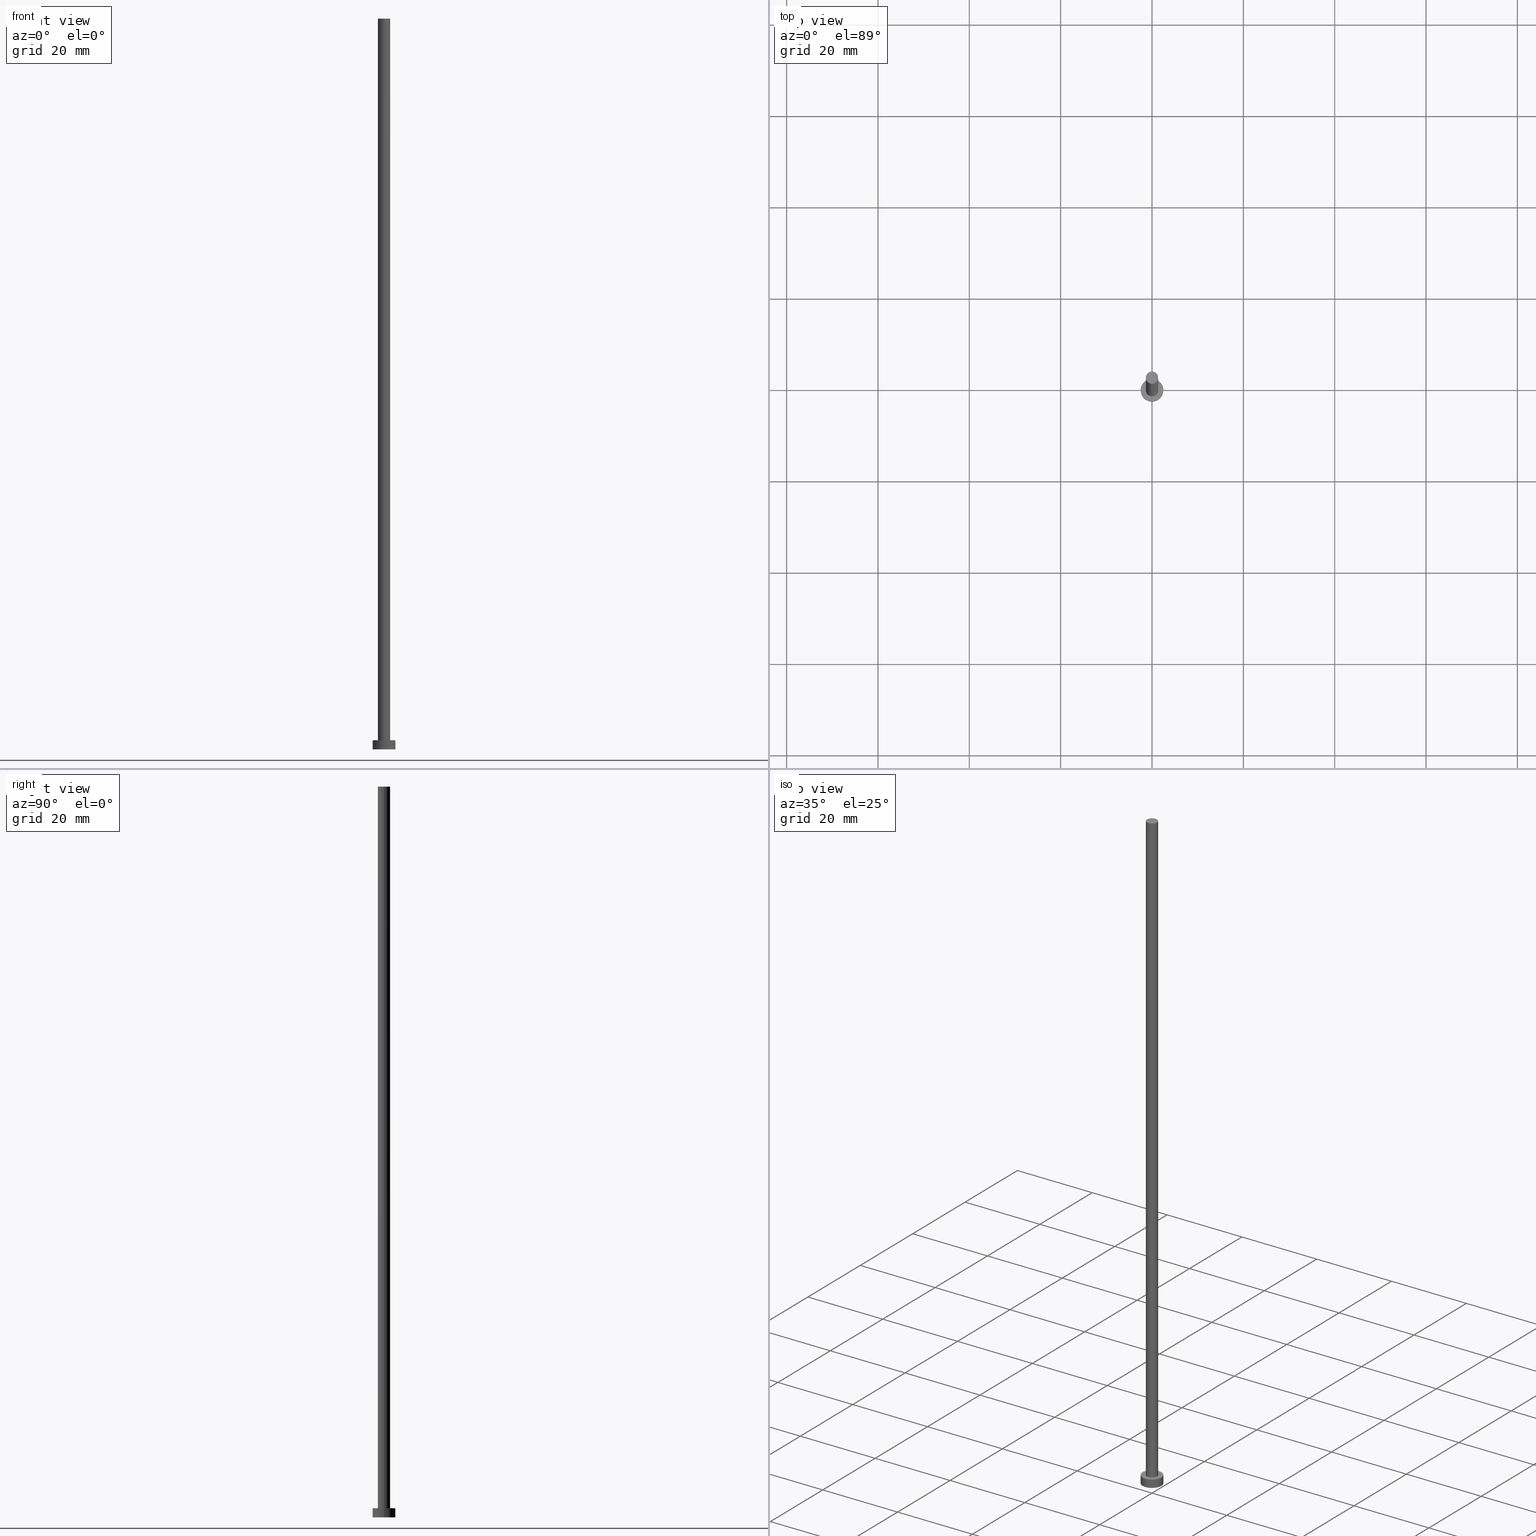
[diagram: canonical four-view strip — front | top / right | iso, engineering-drawing reading convention]
A machine part, canonical four-view strip (front | top / right | iso — engineering-drawing reading convention). The complete STEP part file that produces these views, byte-faithful:
ISO-10303-21;
HEADER;
FILE_DESCRIPTION (( 'STEP AP203' ),
    '1' );
FILE_NAME ('e16c.STEP',
    '2026-02-06T12:31:18',
    ( '' ),
    ( '' ),
    'SwSTEP 2.0',
    'SolidWorks 2019',
    '' );
FILE_SCHEMA (( 'CONFIG_CONTROL_DESIGN' ));
ENDSEC;

DATA;
#1 = ORIENTED_EDGE ( 'NONE', *, *, #210, .F. ) ;
#2 = DIRECTION ( 'NONE',  ( -0.000000000000000000, -0.000000000000000000, -1.000000000000000000 ) ) ;
#3 = AXIS2_PLACEMENT_3D ( 'NONE', #181, #38, #107 ) ;
#4 = ORIENTED_EDGE ( 'NONE', *, *, #250, .F. ) ;
#5 = CARTESIAN_POINT ( 'NONE',  ( 0.000000000000000000, 0.000000000000000000, 0.000000000000000000 ) ) ;
#6 = EDGE_LOOP ( 'NONE', ( #4, #184, #95, #140 ) ) ;
#7 = CIRCLE ( 'NONE', #166, 2.500000000000000000 ) ;
#8 = CALENDAR_DATE ( 2026, 6, 2 ) ;
#9 = EDGE_LOOP ( 'NONE', ( #208, #242 ) ) ;
#10 = COORDINATED_UNIVERSAL_TIME_OFFSET ( 1, 0, .AHEAD. ) ;
#11 = CIRCLE ( 'NONE', #213, 2.500000000000000000 ) ;
#12 = LOCAL_TIME ( 13, 31, 18.00000000000000000, #103 ) ;
#13 = CC_DESIGN_DATE_AND_TIME_ASSIGNMENT ( #155, #170, ( #207 ) ) ;
#14 = EDGE_CURVE ( 'NONE', #46, #37, #245, .T. ) ;
#15 = CIRCLE ( 'NONE', #23, 1.350000000000000089 ) ;
#16 = AXIS2_PLACEMENT_3D ( 'NONE', #77, #61, #136 ) ;
#17 = CC_DESIGN_APPROVAL ( #110, ( #207 ) ) ;
#18 = CARTESIAN_POINT ( 'NONE',  ( -2.500000000000000000, 0.000000000000000000, 2.000000000000000000 ) ) ;
#19 = PRODUCT_RELATED_PRODUCT_CATEGORY ( 'detail', '', ( #145 ) ) ;
#20 = DIRECTION ( 'NONE',  ( 1.000000000000000000, 0.000000000000000000, 0.000000000000000000 ) ) ;
#21 = APPROVAL_PERSON_ORGANIZATION ( #187, #251, #124 ) ;
#22 = CARTESIAN_POINT ( 'NONE',  ( 0.000000000000000000, 0.000000000000000000, 2.000000000000000000 ) ) ;
#23 = AXIS2_PLACEMENT_3D ( 'NONE', #111, #254, #130 ) ;
#24 = ORIENTED_EDGE ( 'NONE', *, *, #82, .F. ) ;
#25 = LINE ( 'NONE', #62, #105 ) ;
#26 = ORIENTED_EDGE ( 'NONE', *, *, #132, .F. ) ;
#27 = DIRECTION ( 'NONE',  ( -0.000000000000000000, -0.000000000000000000, -1.000000000000000000 ) ) ;
#28 = ORGANIZATION ( 'NEUR�EN�', 'NEUR�EN�', '' ) ;
#29 = ORIENTED_EDGE ( 'NONE', *, *, #129, .F. ) ;
#30 = CARTESIAN_POINT ( 'NONE',  ( 0.000000000000000000, 0.000000000000000000, 160.0000000000000000 ) ) ;
#31 = CIRCLE ( 'NONE', #71, 1.350000000000000089 ) ;
#32 = APPLICATION_PROTOCOL_DEFINITION ( 'international standard', 'config_control_design', 1994, #89 ) ;
#33 =( NAMED_UNIT ( * ) SI_UNIT ( $, .STERADIAN. ) SOLID_ANGLE_UNIT ( ) );
#34 = CALENDAR_DATE ( 2026, 6, 2 ) ;
#35 = VECTOR ( 'NONE', #72, 1000.000000000000000 ) ;
#36 = CC_DESIGN_SECURITY_CLASSIFICATION ( #207, ( #126 ) ) ;
#37 = VERTEX_POINT ( 'NONE', #84 ) ;
#38 = DIRECTION ( 'NONE',  ( 0.000000000000000000, 0.000000000000000000, 1.000000000000000000 ) ) ;
#39 = EDGE_CURVE ( 'NONE', #158, #46, #31, .T. ) ;
#40 = LINE ( 'NONE', #18, #190 ) ;
#41 = DATE_AND_TIME ( #73, #147 ) ;
#42 = PLANE ( 'NONE',  #55 ) ;
#43 = AXIS2_PLACEMENT_3D ( 'NONE', #194, #94, #176 ) ;
#44 = VERTEX_POINT ( 'NONE', #68 ) ;
#45 = CARTESIAN_POINT ( 'NONE',  ( 0.000000000000000000, 0.000000000000000000, 2.000000000000000000 ) ) ;
#46 = VERTEX_POINT ( 'NONE', #225 ) ;
#47 = DIRECTION ( 'NONE',  ( -0.000000000000000000, -0.000000000000000000, -1.000000000000000000 ) ) ;
#48 = EDGE_LOOP ( 'NONE', ( #99, #197 ) ) ;
#49 = PERSON_AND_ORGANIZATION_ROLE ( 'design_owner' ) ;
#50 = VERTEX_POINT ( 'NONE', #240 ) ;
#51 = EDGE_LOOP ( 'NONE', ( #24, #138, #221, #26 ) ) ;
#52 = COORDINATED_UNIVERSAL_TIME_OFFSET ( 1, 0, .AHEAD. ) ;
#53 = PERSON_AND_ORGANIZATION_ROLE ( 'creator' ) ;
#54 = PRODUCT_DEFINITION ( 'NEZN�M�', '', #126, #223 ) ;
#55 = AXIS2_PLACEMENT_3D ( 'NONE', #45, #74, #91 ) ;
#56 = EDGE_CURVE ( 'NONE', #50, #37, #167, .T. ) ;
#57 = FACE_OUTER_BOUND ( 'NONE', #48, .T. ) ;
#58 = DIRECTION ( 'NONE',  ( 0.000000000000000000, 0.000000000000000000, 1.000000000000000000 ) ) ;
#59 = ADVANCED_FACE ( 'NONE', ( #113 ), #195, .T. ) ;
#60 = CYLINDRICAL_SURFACE ( 'NONE', #209, 2.500000000000000000 ) ;
#61 = DIRECTION ( 'NONE',  ( -0.000000000000000000, -0.000000000000000000, -1.000000000000000000 ) ) ;
#62 = CARTESIAN_POINT ( 'NONE',  ( 1.350000000000000089, 1.653273178848926867E-16, 160.0000000000000000 ) ) ;
#63 = EDGE_LOOP ( 'NONE', ( #29, #177 ) ) ;
#64 = PERSON_AND_ORGANIZATION ( #232, #28 ) ;
#65 = DIRECTION ( 'NONE',  ( -0.000000000000000000, -0.000000000000000000, -1.000000000000000000 ) ) ;
#66 = EDGE_CURVE ( 'NONE', #161, #120, #11, .T. ) ;
#67 = APPROVAL_PERSON_ORGANIZATION ( #186, #87, #69 ) ;
#68 = CARTESIAN_POINT ( 'NONE',  ( -2.500000000000000000, 0.000000000000000000, 0.000000000000000000 ) ) ;
#69 = APPROVAL_ROLE ( '' ) ;
#70 =( GEOMETRIC_REPRESENTATION_CONTEXT ( 3 ) GLOBAL_UNCERTAINTY_ASSIGNED_CONTEXT ( ( #234 ) ) GLOBAL_UNIT_ASSIGNED_CONTEXT ( ( #83, #144, #33 ) ) REPRESENTATION_CONTEXT ( 'NONE', 'WORKASPACE' ) );
#71 = AXIS2_PLACEMENT_3D ( 'NONE', #30, #247, #141 ) ;
#72 = DIRECTION ( 'NONE',  ( -0.000000000000000000, -0.000000000000000000, -1.000000000000000000 ) ) ;
#73 = CALENDAR_DATE ( 2026, 6, 2 ) ;
#74 = DIRECTION ( 'NONE',  ( 0.000000000000000000, 0.000000000000000000, 1.000000000000000000 ) ) ;
#75 = PERSON_AND_ORGANIZATION ( #232, #28 ) ;
#76 = CARTESIAN_POINT ( 'NONE',  ( 0.000000000000000000, 0.000000000000000000, 0.000000000000000000 ) ) ;
#77 = CARTESIAN_POINT ( 'NONE',  ( 0.000000000000000000, 0.000000000000000000, 2.000000000000000000 ) ) ;
#78 = FACE_OUTER_BOUND ( 'NONE', #199, .T. ) ;
#79 = ORIENTED_EDGE ( 'NONE', *, *, #56, .T. ) ;
#80 = DIRECTION ( 'NONE',  ( 0.000000000000000000, 0.000000000000000000, 1.000000000000000000 ) ) ;
#81 = ORIENTED_EDGE ( 'NONE', *, *, #142, .T. ) ;
#82 = EDGE_CURVE ( 'NONE', #120, #161, #128, .T. ) ;
#83 =( LENGTH_UNIT ( ) NAMED_UNIT ( * ) SI_UNIT ( .MILLI., .METRE. ) );
#84 = CARTESIAN_POINT ( 'NONE',  ( -1.350000000000000089, 0.000000000000000000, 2.000000000000000000 ) ) ;
#85 = PERSON_AND_ORGANIZATION ( #232, #28 ) ;
#86 = AXIS2_PLACEMENT_3D ( 'NONE', #96, #80, #179 ) ;
#87 = APPROVAL ( #201, 'NEUR�EN�' ) ;
#88 = EDGE_CURVE ( 'NONE', #44, #101, #235, .T. ) ;
#89 = APPLICATION_CONTEXT ( 'configuration controlled 3d designs of mechanical parts and assemblies' ) ;
#90 = COORDINATED_UNIVERSAL_TIME_OFFSET ( 1, 0, .AHEAD. ) ;
#91 = DIRECTION ( 'NONE',  ( 1.000000000000000000, 0.000000000000000000, -0.000000000000000000 ) ) ;
#92 = DIRECTION ( 'NONE',  ( 1.000000000000000000, 0.000000000000000000, 0.000000000000000000 ) ) ;
#93 = CC_DESIGN_PERSON_AND_ORGANIZATION_ASSIGNMENT ( #85, #49, ( #145 ) ) ;
#94 = DIRECTION ( 'NONE',  ( -0.000000000000000000, -0.000000000000000000, -1.000000000000000000 ) ) ;
#95 = ORIENTED_EDGE ( 'NONE', *, *, #132, .T. ) ;
#96 = CARTESIAN_POINT ( 'NONE',  ( 0.000000000000000000, 0.000000000000000000, 2.000000000000000000 ) ) ;
#97 = ORIENTED_EDGE ( 'NONE', *, *, #39, .T. ) ;
#98 = PLANE ( 'NONE',  #3 ) ;
#99 = ORIENTED_EDGE ( 'NONE', *, *, #66, .T. ) ;
#100 = APPLICATION_PROTOCOL_DEFINITION ( 'international standard', 'config_control_design', 1994, #118 ) ;
#101 = VERTEX_POINT ( 'NONE', #236 ) ;
#102 = ADVANCED_FACE ( 'NONE', ( #217 ), #174, .T. ) ;
#103 = COORDINATED_UNIVERSAL_TIME_OFFSET ( 1, 0, .AHEAD. ) ;
#104 = CC_DESIGN_DATE_AND_TIME_ASSIGNMENT ( #123, #205, ( #54 ) ) ;
#105 = VECTOR ( 'NONE', #27, 1000.000000000000000 ) ;
#106 = AXIS2_PLACEMENT_3D ( 'NONE', #152, #58, #92 ) ;
#107 = DIRECTION ( 'NONE',  ( 1.000000000000000000, 0.000000000000000000, -0.000000000000000000 ) ) ;
#108 = FACE_BOUND ( 'NONE', #63, .T. ) ;
#109 = APPROVAL_DATE_TIME ( #41, #110 ) ;
#110 = APPROVAL ( #135, 'NEUR�EN�' ) ;
#111 = CARTESIAN_POINT ( 'NONE',  ( 0.000000000000000000, 0.000000000000000000, 2.000000000000000000 ) ) ;
#112 = SHAPE_DEFINITION_REPRESENTATION ( #165, #220 ) ;
#113 = FACE_OUTER_BOUND ( 'NONE', #6, .T. ) ;
#114 = FACE_OUTER_BOUND ( 'NONE', #51, .T. ) ;
#115 = ORIENTED_EDGE ( 'NONE', *, *, #39, .F. ) ;
#116 = CARTESIAN_POINT ( 'NONE',  ( 0.000000000000000000, 0.000000000000000000, 2.000000000000000000 ) ) ;
#117 = ORIENTED_EDGE ( 'NONE', *, *, #142, .F. ) ;
#118 = APPLICATION_CONTEXT ( 'configuration controlled 3d designs of mechanical parts and assemblies' ) ;
#119 = DATE_AND_TIME ( #164, #200 ) ;
#120 = VERTEX_POINT ( 'NONE', #157 ) ;
#121 = DIRECTION ( 'NONE',  ( 0.000000000000000000, 0.000000000000000000, 1.000000000000000000 ) ) ;
#122 = CARTESIAN_POINT ( 'NONE',  ( 0.000000000000000000, 0.000000000000000000, 2.000000000000000000 ) ) ;
#123 = DATE_AND_TIME ( #8, #248 ) ;
#124 = APPROVAL_ROLE ( '' ) ;
#125 = AXIS2_PLACEMENT_3D ( 'NONE', #255, #238, #212 ) ;
#126 = PRODUCT_DEFINITION_FORMATION_WITH_SPECIFIED_SOURCE ( 'LIBOVOLN�', '', #145, .NOT_KNOWN. ) ;
#127 = MANIFOLD_SOLID_BREP ( 'P�idat vysunut�m3', #206 ) ;
#128 = CIRCLE ( 'NONE', #86, 2.500000000000000000 ) ;
#129 = EDGE_CURVE ( 'NONE', #37, #50, #15, .T. ) ;
#130 = DIRECTION ( 'NONE',  ( 1.000000000000000000, 0.000000000000000000, 0.000000000000000000 ) ) ;
#131 = CYLINDRICAL_SURFACE ( 'NONE', #43, 1.350000000000000089 ) ;
#132 = EDGE_CURVE ( 'NONE', #161, #44, #40, .T. ) ;
#133 = DIRECTION ( 'NONE',  ( 1.000000000000000000, 0.000000000000000000, 0.000000000000000000 ) ) ;
#134 = DIRECTION ( 'NONE',  ( 1.000000000000000000, 0.000000000000000000, 0.000000000000000000 ) ) ;
#135 = APPROVAL_STATUS ( 'not_yet_approved' ) ;
#136 = DIRECTION ( 'NONE',  ( -1.000000000000000000, 0.000000000000000000, 0.000000000000000000 ) ) ;
#137 = DIRECTION ( 'NONE',  ( 0.000000000000000000, 0.000000000000000000, 1.000000000000000000 ) ) ;
#138 = ORIENTED_EDGE ( 'NONE', *, *, #250, .T. ) ;
#139 = PERSON_AND_ORGANIZATION_ROLE ( 'creator' ) ;
#140 = ORIENTED_EDGE ( 'NONE', *, *, #88, .T. ) ;
#141 = DIRECTION ( 'NONE',  ( 1.000000000000000000, 0.000000000000000000, 0.000000000000000000 ) ) ;
#142 = EDGE_CURVE ( 'NONE', #46, #158, #229, .T. ) ;
#143 = MECHANICAL_CONTEXT ( 'NONE', #89, 'mechanical' ) ;
#144 =( NAMED_UNIT ( * ) PLANE_ANGLE_UNIT ( ) SI_UNIT ( $, .RADIAN. ) );
#145 = PRODUCT ( 'e16c', 'e16c', '', ( #143 ) ) ;
#146 = EDGE_LOOP ( 'NONE', ( #1, #117, #156, #182 ) ) ;
#147 = LOCAL_TIME ( 13, 31, 18.00000000000000000, #237 ) ;
#148 = CC_DESIGN_PERSON_AND_ORGANIZATION_ASSIGNMENT ( #222, #246, ( #126 ) ) ;
#149 = EDGE_CURVE ( 'NONE', #101, #44, #7, .T. ) ;
#150 = CARTESIAN_POINT ( 'NONE',  ( 0.000000000000000000, 0.000000000000000000, 160.0000000000000000 ) ) ;
#151 = AXIS2_PLACEMENT_3D ( 'NONE', #150, #215, #192 ) ;
#152 = CARTESIAN_POINT ( 'NONE',  ( 0.000000000000000000, 0.000000000000000000, 160.0000000000000000 ) ) ;
#153 = PERSON_AND_ORGANIZATION ( #232, #28 ) ;
#154 = FACE_OUTER_BOUND ( 'NONE', #163, .T. ) ;
#155 = DATE_AND_TIME ( #175, #189 ) ;
#156 = ORIENTED_EDGE ( 'NONE', *, *, #14, .T. ) ;
#157 = CARTESIAN_POINT ( 'NONE',  ( 2.500000000000000000, 3.061616997868383141E-16, 2.000000000000000000 ) ) ;
#158 = VERTEX_POINT ( 'NONE', #241 ) ;
#159 = AXIS2_PLACEMENT_3D ( 'NONE', #5, #219, #20 ) ;
#160 = CARTESIAN_POINT ( 'NONE',  ( -2.500000000000000000, 0.000000000000000000, 2.000000000000000000 ) ) ;
#161 = VERTEX_POINT ( 'NONE', #160 ) ;
#162 = APPROVAL_DATE_TIME ( #244, #251 ) ;
#163 = EDGE_LOOP ( 'NONE', ( #115, #180, #79, #218 ) ) ;
#164 = CALENDAR_DATE ( 2026, 6, 2 ) ;
#165 = PRODUCT_DEFINITION_SHAPE ( 'NONE', 'NONE',  #54 ) ;
#166 = AXIS2_PLACEMENT_3D ( 'NONE', #76, #214, #133 ) ;
#167 = CIRCLE ( 'NONE', #243, 1.350000000000000089 ) ;
#168 = ADVANCED_FACE ( 'NONE', ( #108, #57 ), #42, .T. ) ;
#169 = CC_DESIGN_PERSON_AND_ORGANIZATION_ASSIGNMENT ( #228, #53, ( #54 ) ) ;
#170 = DATE_TIME_ROLE ( 'classification_date' ) ;
#171 = ADVANCED_FACE ( 'NONE', ( #154 ), #131, .T. ) ;
#172 = FACE_OUTER_BOUND ( 'NONE', #9, .T. ) ;
#173 = PERSON_AND_ORGANIZATION_ROLE ( 'classification_officer' ) ;
#174 = CYLINDRICAL_SURFACE ( 'NONE', #151, 1.350000000000000089 ) ;
#175 = CALENDAR_DATE ( 2026, 6, 2 ) ;
#176 = DIRECTION ( 'NONE',  ( -1.000000000000000000, 0.000000000000000000, 0.000000000000000000 ) ) ;
#177 = ORIENTED_EDGE ( 'NONE', *, *, #56, .F. ) ;
#178 = ADVANCED_FACE ( 'NONE', ( #172 ), #198, .F. ) ;
#179 = DIRECTION ( 'NONE',  ( 1.000000000000000000, 0.000000000000000000, 0.000000000000000000 ) ) ;
#180 = ORIENTED_EDGE ( 'NONE', *, *, #210, .T. ) ;
#181 = CARTESIAN_POINT ( 'NONE',  ( 0.000000000000000000, 0.000000000000000000, 160.0000000000000000 ) ) ;
#182 = ORIENTED_EDGE ( 'NONE', *, *, #129, .T. ) ;
#183 = VECTOR ( 'NONE', #65, 1000.000000000000000 ) ;
#184 = ORIENTED_EDGE ( 'NONE', *, *, #66, .F. ) ;
#185 = ADVANCED_FACE ( 'NONE', ( #114 ), #60, .T. ) ;
#186 = PERSON_AND_ORGANIZATION ( #232, #28 ) ;
#187 = PERSON_AND_ORGANIZATION ( #232, #28 ) ;
#188 = APPROVAL_STATUS ( 'not_yet_approved' ) ;
#189 = LOCAL_TIME ( 13, 31, 18.00000000000000000, #90 ) ;
#190 = VECTOR ( 'NONE', #47, 1000.000000000000000 ) ;
#191 = LINE ( 'NONE', #252, #35 ) ;
#192 = DIRECTION ( 'NONE',  ( -1.000000000000000000, 0.000000000000000000, 0.000000000000000000 ) ) ;
#193 = CC_DESIGN_PERSON_AND_ORGANIZATION_ASSIGNMENT ( #64, #139, ( #126 ) ) ;
#194 = CARTESIAN_POINT ( 'NONE',  ( 0.000000000000000000, 0.000000000000000000, 160.0000000000000000 ) ) ;
#195 = CYLINDRICAL_SURFACE ( 'NONE', #16, 2.500000000000000000 ) ;
#196 = DIRECTION ( 'NONE',  ( -1.000000000000000000, 0.000000000000000000, 0.000000000000000000 ) ) ;
#197 = ORIENTED_EDGE ( 'NONE', *, *, #82, .T. ) ;
#198 = PLANE ( 'NONE',  #125 ) ;
#199 = EDGE_LOOP ( 'NONE', ( #81, #97 ) ) ;
#200 = LOCAL_TIME ( 13, 31, 18.00000000000000000, #10 ) ;
#201 = APPROVAL_STATUS ( 'not_yet_approved' ) ;
#202 = CC_DESIGN_PERSON_AND_ORGANIZATION_ASSIGNMENT ( #75, #173, ( #207 ) ) ;
#203 = CARTESIAN_POINT ( 'NONE',  ( -1.350000000000000089, 0.000000000000000000, 160.0000000000000000 ) ) ;
#204 = DIRECTION ( 'NONE',  ( 0.000000000000000000, 0.000000000000000000, 1.000000000000000000 ) ) ;
#205 = DATE_TIME_ROLE ( 'creation_date' ) ;
#206 = CLOSED_SHELL ( 'NONE', ( #171, #185, #59, #168, #178, #102, #231 ) ) ;
#207 = SECURITY_CLASSIFICATION ( '', '', #253 ) ;
#208 = ORIENTED_EDGE ( 'NONE', *, *, #88, .F. ) ;
#209 = AXIS2_PLACEMENT_3D ( 'NONE', #116, #2, #196 ) ;
#210 = EDGE_CURVE ( 'NONE', #158, #50, #25, .T. ) ;
#211 = AXIS2_PLACEMENT_3D ( 'NONE', #249, #121, #224 ) ;
#212 = DIRECTION ( 'NONE',  ( 1.000000000000000000, 0.000000000000000000, -0.000000000000000000 ) ) ;
#213 = AXIS2_PLACEMENT_3D ( 'NONE', #22, #137, #134 ) ;
#214 = DIRECTION ( 'NONE',  ( 0.000000000000000000, 0.000000000000000000, 1.000000000000000000 ) ) ;
#215 = DIRECTION ( 'NONE',  ( -0.000000000000000000, -0.000000000000000000, -1.000000000000000000 ) ) ;
#216 = DIRECTION ( 'NONE',  ( 1.000000000000000000, 0.000000000000000000, 0.000000000000000000 ) ) ;
#217 = FACE_OUTER_BOUND ( 'NONE', #146, .T. ) ;
#218 = ORIENTED_EDGE ( 'NONE', *, *, #14, .F. ) ;
#219 = DIRECTION ( 'NONE',  ( 0.000000000000000000, 0.000000000000000000, 1.000000000000000000 ) ) ;
#220 = ADVANCED_BREP_SHAPE_REPRESENTATION ( 'e16c', ( #127, #211 ), #70 ) ;
#221 = ORIENTED_EDGE ( 'NONE', *, *, #149, .T. ) ;
#222 = PERSON_AND_ORGANIZATION ( #232, #28 ) ;
#223 = DESIGN_CONTEXT ( 'detailed design', #118, 'design' ) ;
#224 = DIRECTION ( 'NONE',  ( 1.000000000000000000, 0.000000000000000000, 0.000000000000000000 ) ) ;
#225 = CARTESIAN_POINT ( 'NONE',  ( -1.350000000000000089, 0.000000000000000000, 160.0000000000000000 ) ) ;
#226 = APPROVAL_DATE_TIME ( #119, #87 ) ;
#227 = APPROVAL_PERSON_ORGANIZATION ( #153, #110, #239 ) ;
#228 = PERSON_AND_ORGANIZATION ( #232, #28 ) ;
#229 = CIRCLE ( 'NONE', #106, 1.350000000000000089 ) ;
#230 = CC_DESIGN_APPROVAL ( #251, ( #126 ) ) ;
#231 = ADVANCED_FACE ( 'NONE', ( #78 ), #98, .T. ) ;
#232 = PERSON ( 'NEUR�EN�', 'NEUR�EN�', 'NEUR�EN�', ('NEUR�EN�'), ('NEUR�EN�'), ('NEUR�EN�') ) ;
#233 = CC_DESIGN_APPROVAL ( #87, ( #54 ) ) ;
#234 = UNCERTAINTY_MEASURE_WITH_UNIT (LENGTH_MEASURE( 1.000000000000000082E-05 ), #83, 'distance_accuracy_value', 'NONE');
#235 = CIRCLE ( 'NONE', #159, 2.500000000000000000 ) ;
#236 = CARTESIAN_POINT ( 'NONE',  ( 2.500000000000000000, 3.061616997868383141E-16, 0.000000000000000000 ) ) ;
#237 = COORDINATED_UNIVERSAL_TIME_OFFSET ( 1, 0, .AHEAD. ) ;
#238 = DIRECTION ( 'NONE',  ( 0.000000000000000000, 0.000000000000000000, 1.000000000000000000 ) ) ;
#239 = APPROVAL_ROLE ( '' ) ;
#240 = CARTESIAN_POINT ( 'NONE',  ( 1.350000000000000089, 1.653273178848926867E-16, 2.000000000000000000 ) ) ;
#241 = CARTESIAN_POINT ( 'NONE',  ( 1.350000000000000089, 1.653273178848926867E-16, 160.0000000000000000 ) ) ;
#242 = ORIENTED_EDGE ( 'NONE', *, *, #149, .F. ) ;
#243 = AXIS2_PLACEMENT_3D ( 'NONE', #122, #204, #216 ) ;
#244 = DATE_AND_TIME ( #34, #12 ) ;
#245 = LINE ( 'NONE', #203, #183 ) ;
#246 = PERSON_AND_ORGANIZATION_ROLE ( 'design_supplier' ) ;
#247 = DIRECTION ( 'NONE',  ( 0.000000000000000000, 0.000000000000000000, 1.000000000000000000 ) ) ;
#248 = LOCAL_TIME ( 13, 31, 18.00000000000000000, #52 ) ;
#249 = CARTESIAN_POINT ( 'NONE',  ( 0.000000000000000000, 0.000000000000000000, 0.000000000000000000 ) ) ;
#250 = EDGE_CURVE ( 'NONE', #120, #101, #191, .T. ) ;
#251 = APPROVAL ( #188, 'NEUR�EN�' ) ;
#252 = CARTESIAN_POINT ( 'NONE',  ( 2.500000000000000000, 3.061616997868383141E-16, 2.000000000000000000 ) ) ;
#253 = SECURITY_CLASSIFICATION_LEVEL ( 'unclassified' ) ;
#254 = DIRECTION ( 'NONE',  ( 0.000000000000000000, 0.000000000000000000, 1.000000000000000000 ) ) ;
#255 = CARTESIAN_POINT ( 'NONE',  ( 0.000000000000000000, 0.000000000000000000, 0.000000000000000000 ) ) ;
ENDSEC;
END-ISO-10303-21;
